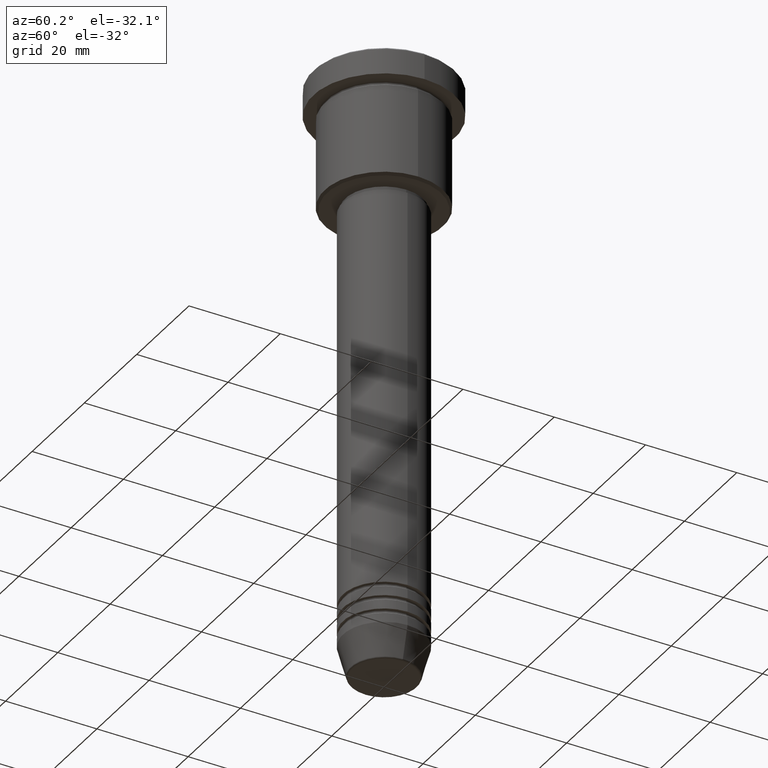
[diagram: clean part render]
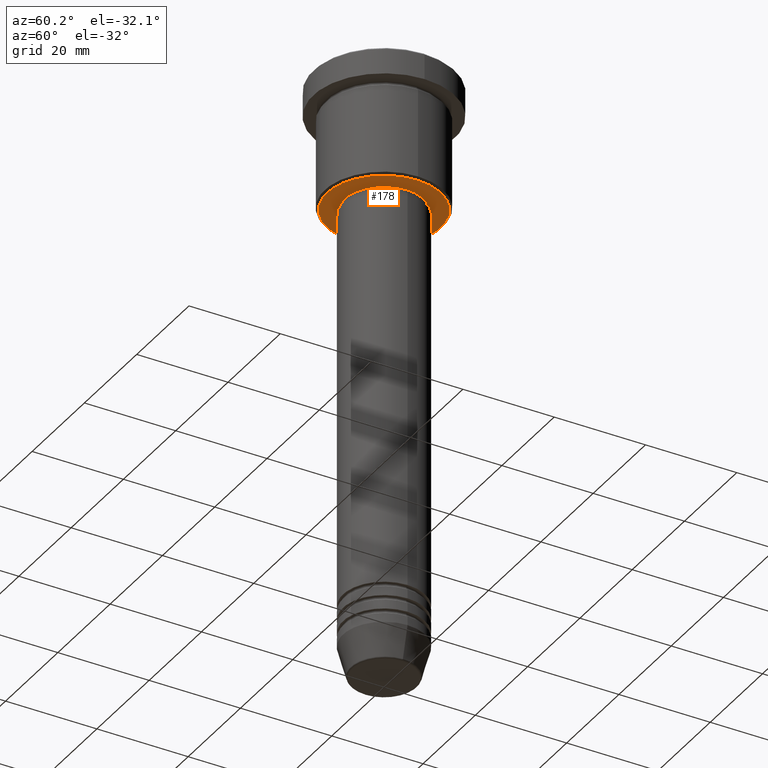
[diagram: same view with one face highlighted and labeled with its STEP entity id]
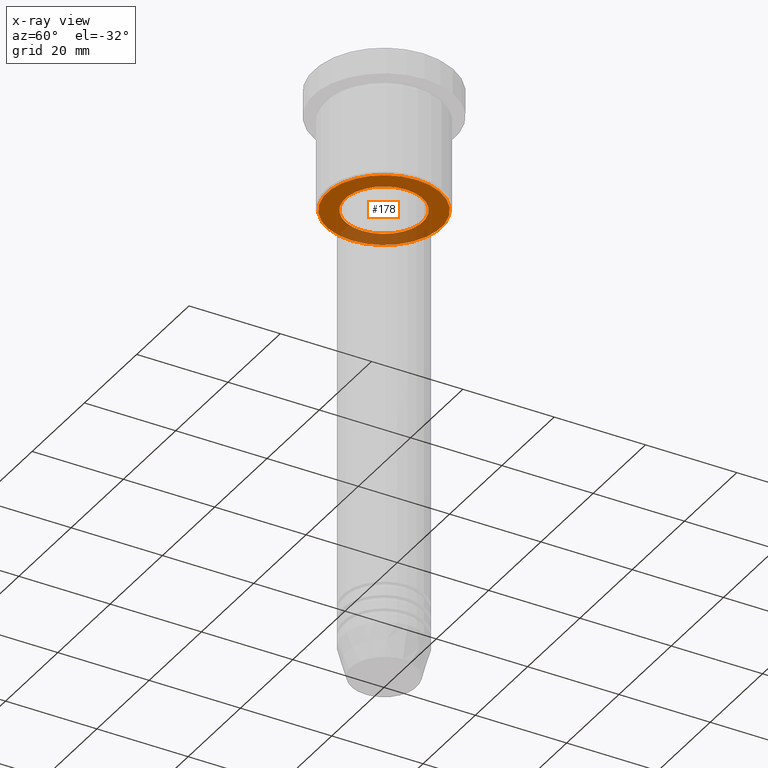
[diagram: x-ray of the same camera — body ghosted, the highlighted face saturated]
A machine part, auxiliary view. The second image highlights one B-rep face of the part: STEP entity #178.
The next image is the same camera in x-ray: the body ghosted, the highlighted face saturated — about 26% of this face is hidden behind the body in this view.
In plain terms, the highlighted planar face has unit normal (0, 0, -1).
Its self-contained STEP definition (entity closure, byte-faithful):
#60 = CARTESIAN_POINT ( 'NONE',  ( 0.000000000000000000, 0.000000000000000000, -27.00000000000000000 ) ) ;
#65 = EDGE_CURVE ( 'NONE', #96, #1100, #680, .T. ) ;
#96 = VERTEX_POINT ( 'NONE', #702 ) ;
#129 = DIRECTION ( 'NONE',  ( -0.000000000000000000, -0.000000000000000000, 1.000000000000000000 ) ) ;
#146 = DIRECTION ( 'NONE',  ( 0.000000000000000000, 0.000000000000000000, -1.000000000000000000 ) ) ;
#147 = AXIS2_PLACEMENT_3D ( 'NONE', #60, #129, #534 ) ;
#161 = CARTESIAN_POINT ( 'NONE',  ( -12.49999999999996980, 1.561424668912873336E-15, -26.99999999999999645 ) ) ;
#178 = ADVANCED_FACE ( 'NONE', ( #508, #519 ), #426, .T. ) ;
#211 = CIRCLE ( 'NONE', #882, 8.499999999999998224 ) ;
#245 = VERTEX_POINT ( 'NONE', #161 ) ;
#250 = AXIS2_PLACEMENT_3D ( 'NONE', #894, #820, #1178 ) ;
#276 = EDGE_CURVE ( 'NONE', #245, #496, #1049, .T. ) ;
#344 = EDGE_CURVE ( 'NONE', #1100, #96, #211, .T. ) ;
#350 = DIRECTION ( 'NONE',  ( 0.000000000000000000, 0.000000000000000000, -1.000000000000000000 ) ) ;
#366 = ORIENTED_EDGE ( 'NONE', *, *, #1041, .T. ) ;
#424 = AXIS2_PLACEMENT_3D ( 'NONE', #1151, #146, #631 ) ;
#426 = PLANE ( 'NONE',  #424 ) ;
#439 = ORIENTED_EDGE ( 'NONE', *, *, #344, .T. ) ;
#442 = CARTESIAN_POINT ( 'NONE',  ( 0.000000000000000000, 0.000000000000000000, -27.00000000000000000 ) ) ;
#477 = ORIENTED_EDGE ( 'NONE', *, *, #276, .T. ) ;
#483 = ORIENTED_EDGE ( 'NONE', *, *, #65, .T. ) ;
#496 = VERTEX_POINT ( 'NONE', #1058 ) ;
#508 = FACE_OUTER_BOUND ( 'NONE', #1112, .T. ) ;
#519 = FACE_BOUND ( 'NONE', #1099, .T. ) ;
#534 = DIRECTION ( 'NONE',  ( 1.000000000000000000, 0.000000000000000000, 0.000000000000000000 ) ) ;
#588 = CIRCLE ( 'NONE', #756, 12.49999999999996980 ) ;
#631 = DIRECTION ( 'NONE',  ( -1.000000000000000000, 0.000000000000000000, -0.000000000000000000 ) ) ;
#659 = DIRECTION ( 'NONE',  ( -0.000000000000000000, -0.000000000000000000, 1.000000000000000000 ) ) ;
#680 = CIRCLE ( 'NONE', #147, 8.499999999999998224 ) ;
#702 = CARTESIAN_POINT ( 'NONE',  ( -8.499999999999998224, 1.040949779275249943E-15, -27.00000000000000000 ) ) ;
#719 = DIRECTION ( 'NONE',  ( -1.000000000000000000, 0.000000000000000000, 0.000000000000000000 ) ) ;
#729 = CARTESIAN_POINT ( 'NONE',  ( 8.499999999999998224, 0.000000000000000000, -27.00000000000000000 ) ) ;
#756 = AXIS2_PLACEMENT_3D ( 'NONE', #888, #350, #719 ) ;
#820 = DIRECTION ( 'NONE',  ( 0.000000000000000000, 0.000000000000000000, -1.000000000000000000 ) ) ;
#840 = DIRECTION ( 'NONE',  ( 1.000000000000000000, 0.000000000000000000, 0.000000000000000000 ) ) ;
#882 = AXIS2_PLACEMENT_3D ( 'NONE', #442, #659, #840 ) ;
#888 = CARTESIAN_POINT ( 'NONE',  ( 0.000000000000000000, 0.000000000000000000, -26.99999999999999645 ) ) ;
#894 = CARTESIAN_POINT ( 'NONE',  ( 0.000000000000000000, 0.000000000000000000, -26.99999999999999645 ) ) ;
#1041 = EDGE_CURVE ( 'NONE', #496, #245, #588, .T. ) ;
#1049 = CIRCLE ( 'NONE', #250, 12.49999999999996980 ) ;
#1058 = CARTESIAN_POINT ( 'NONE',  ( 12.49999999999996980, 0.000000000000000000, -26.99999999999999645 ) ) ;
#1099 = EDGE_LOOP ( 'NONE', ( #439, #483 ) ) ;
#1100 = VERTEX_POINT ( 'NONE', #729 ) ;
#1112 = EDGE_LOOP ( 'NONE', ( #366, #477 ) ) ;
#1151 = CARTESIAN_POINT ( 'NONE',  ( 0.000000000000000000, 13.00000000000000000, -26.99999999999999645 ) ) ;
#1178 = DIRECTION ( 'NONE',  ( -1.000000000000000000, 0.000000000000000000, 0.000000000000000000 ) ) ;